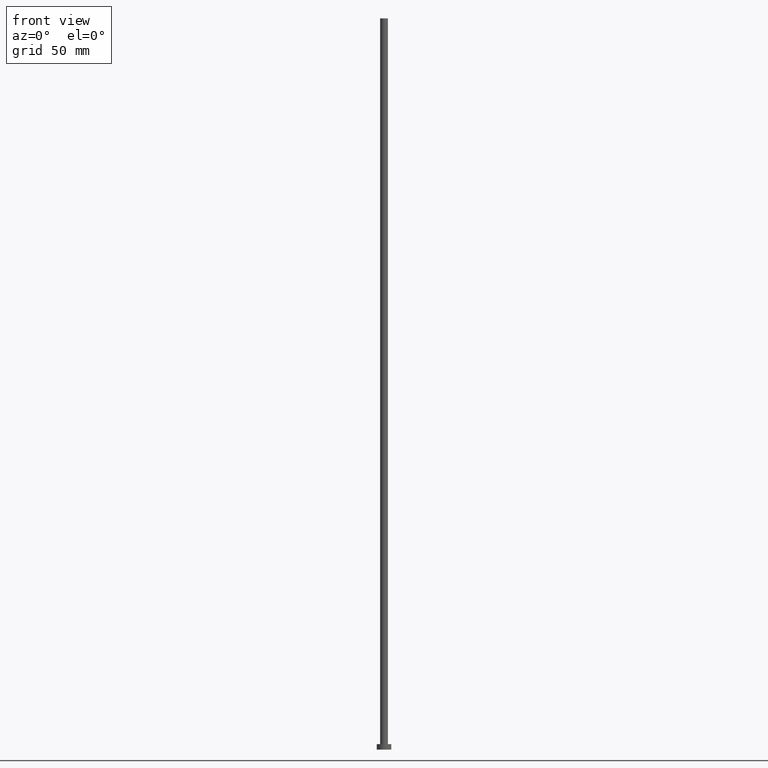
[diagram: clean part render]
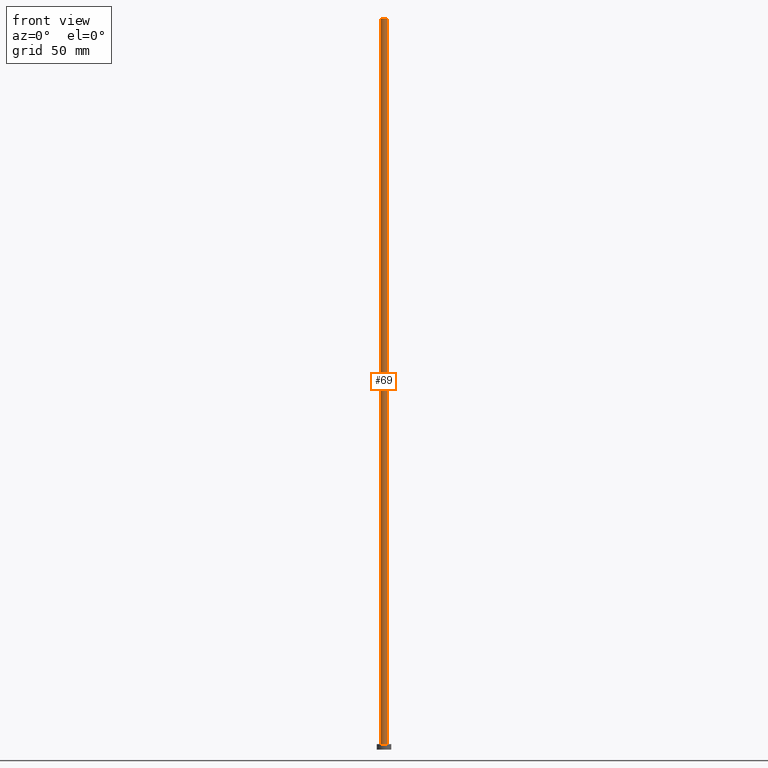
[diagram: same view with one face highlighted and labeled with its STEP entity id]
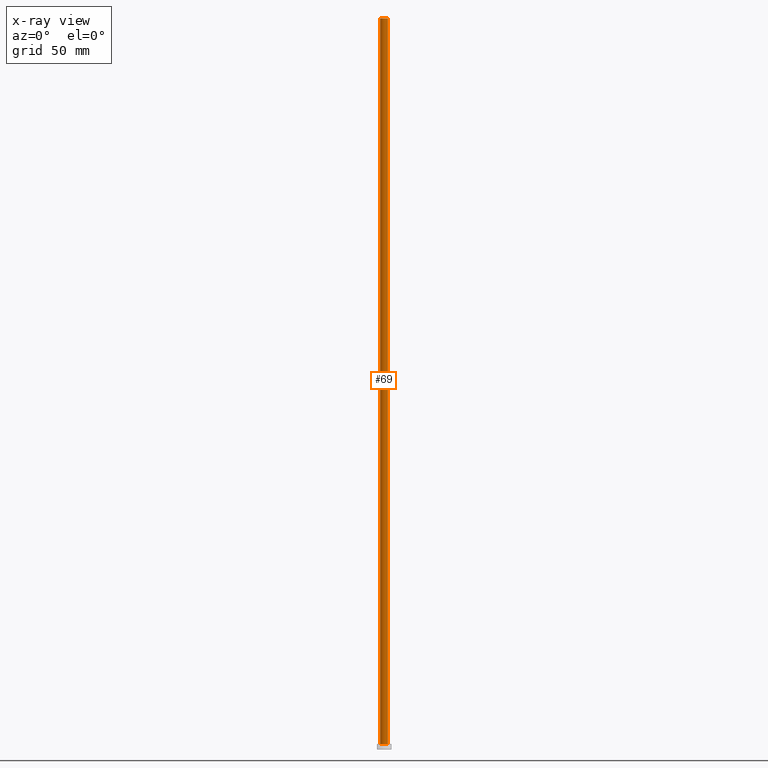
[diagram: x-ray of the same camera — body ghosted, the highlighted face saturated]
A machine part, front view. The second image highlights one B-rep face of the part: STEP entity #69.
The next image is the same camera in x-ray: the body ghosted, the highlighted face saturated — about 0% of this face is hidden behind the body in this view.
In plain terms, the highlighted cylindrical surface (edge-blend (fillet) strip) has radius 2.1 mm, axis along (-0, -0, -1).
Its self-contained STEP definition (entity closure, byte-faithful):
#9 = CARTESIAN_POINT ( 'NONE',  ( -2.100000000000000089, 0.000000000000000000, 400.0000000000000000 ) ) ;
#14 = AXIS2_PLACEMENT_3D ( 'NONE', #212, #252, #249 ) ;
#16 = DIRECTION ( 'NONE',  ( -0.000000000000000000, -0.000000000000000000, -1.000000000000000000 ) ) ;
#29 = ORIENTED_EDGE ( 'NONE', *, *, #33, .T. ) ;
#33 = EDGE_CURVE ( 'NONE', #184, #188, #225, .T. ) ;
#41 = CARTESIAN_POINT ( 'NONE',  ( 0.000000000000000000, 0.000000000000000000, 400.0000000000000000 ) ) ;
#62 = CARTESIAN_POINT ( 'NONE',  ( -2.100000000000000089, 0.000000000000000000, 3.000000000000000000 ) ) ;
#69 = ADVANCED_FACE ( 'NONE', ( #80 ), #152, .T. ) ;
#72 = ORIENTED_EDGE ( 'NONE', *, *, #97, .F. ) ;
#80 = FACE_OUTER_BOUND ( 'NONE', #164, .T. ) ;
#92 = CARTESIAN_POINT ( 'NONE',  ( -2.100000000000000089, 0.000000000000000000, 400.0000000000000000 ) ) ;
#97 = EDGE_CURVE ( 'NONE', #243, #188, #195, .T. ) ;
#104 = ORIENTED_EDGE ( 'NONE', *, *, #121, .T. ) ;
#112 = DIRECTION ( 'NONE',  ( -1.000000000000000000, 0.000000000000000000, 0.000000000000000000 ) ) ;
#119 = CARTESIAN_POINT ( 'NONE',  ( 2.100000000000000089, 2.571758278209441957E-16, 400.0000000000000000 ) ) ;
#121 = EDGE_CURVE ( 'NONE', #245, #184, #129, .T. ) ;
#127 = VECTOR ( 'NONE', #173, 1000.000000000000000 ) ;
#128 = ORIENTED_EDGE ( 'NONE', *, *, #198, .F. ) ;
#129 = LINE ( 'NONE', #92, #127 ) ;
#134 = DIRECTION ( 'NONE',  ( 0.000000000000000000, 0.000000000000000000, 1.000000000000000000 ) ) ;
#145 = AXIS2_PLACEMENT_3D ( 'NONE', #41, #134, #214 ) ;
#152 = CYLINDRICAL_SURFACE ( 'NONE', #236, 2.100000000000000089 ) ;
#164 = EDGE_LOOP ( 'NONE', ( #72, #128, #104, #29 ) ) ;
#173 = DIRECTION ( 'NONE',  ( -0.000000000000000000, -0.000000000000000000, -1.000000000000000000 ) ) ;
#177 = VECTOR ( 'NONE', #234, 1000.000000000000000 ) ;
#179 = CIRCLE ( 'NONE', #145, 2.100000000000000089 ) ;
#184 = VERTEX_POINT ( 'NONE', #62 ) ;
#188 = VERTEX_POINT ( 'NONE', #213 ) ;
#191 = CARTESIAN_POINT ( 'NONE',  ( 0.000000000000000000, 0.000000000000000000, 400.0000000000000000 ) ) ;
#195 = LINE ( 'NONE', #197, #177 ) ;
#197 = CARTESIAN_POINT ( 'NONE',  ( 2.100000000000000089, 2.571758278209441957E-16, 400.0000000000000000 ) ) ;
#198 = EDGE_CURVE ( 'NONE', #245, #243, #179, .T. ) ;
#212 = CARTESIAN_POINT ( 'NONE',  ( 0.000000000000000000, 0.000000000000000000, 3.000000000000000000 ) ) ;
#213 = CARTESIAN_POINT ( 'NONE',  ( 2.100000000000000089, 2.571758278209441957E-16, 3.000000000000000000 ) ) ;
#214 = DIRECTION ( 'NONE',  ( 1.000000000000000000, 0.000000000000000000, 0.000000000000000000 ) ) ;
#225 = CIRCLE ( 'NONE', #14, 2.100000000000000089 ) ;
#234 = DIRECTION ( 'NONE',  ( -0.000000000000000000, -0.000000000000000000, -1.000000000000000000 ) ) ;
#236 = AXIS2_PLACEMENT_3D ( 'NONE', #191, #16, #112 ) ;
#243 = VERTEX_POINT ( 'NONE', #119 ) ;
#245 = VERTEX_POINT ( 'NONE', #9 ) ;
#249 = DIRECTION ( 'NONE',  ( 1.000000000000000000, 0.000000000000000000, 0.000000000000000000 ) ) ;
#252 = DIRECTION ( 'NONE',  ( 0.000000000000000000, 0.000000000000000000, 1.000000000000000000 ) ) ;